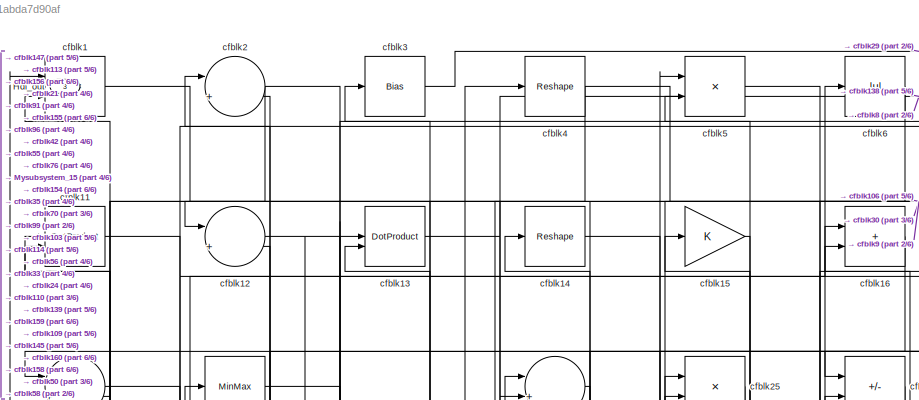
[diagram: root canvas - part 1/6, top left region]
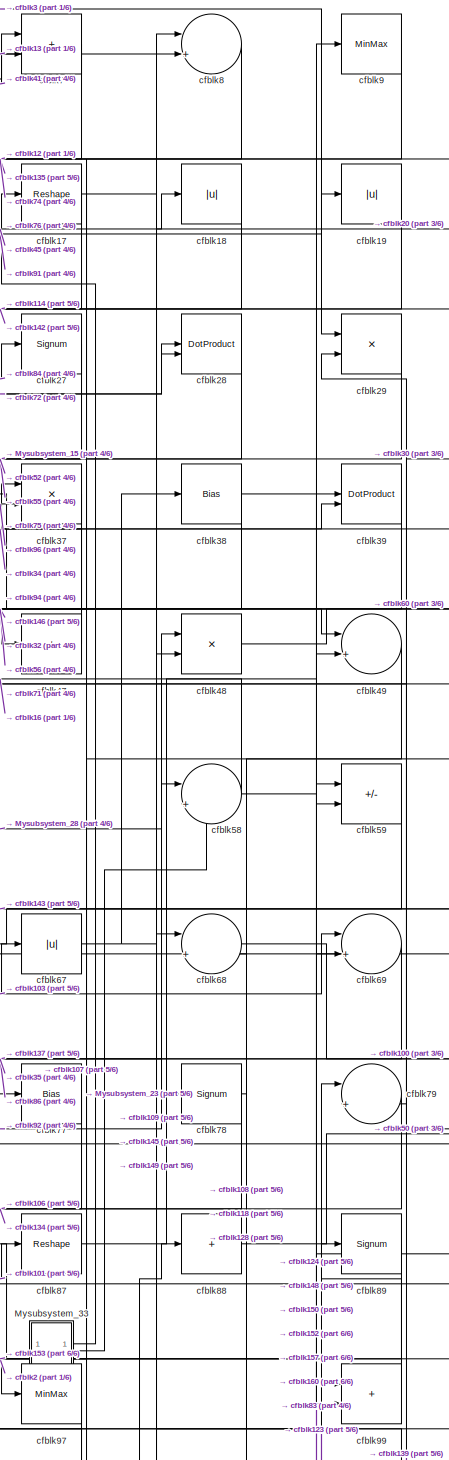
[diagram: root canvas - part 2/6, top right region]
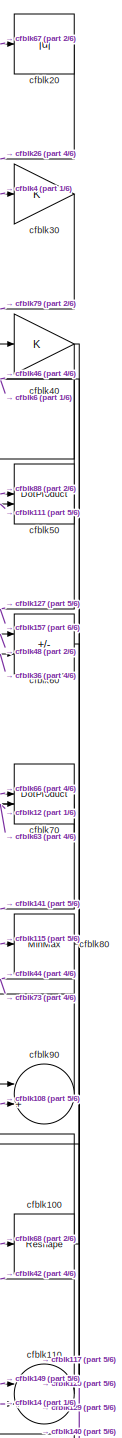
[diagram: root canvas - part 3/6, middle right region]
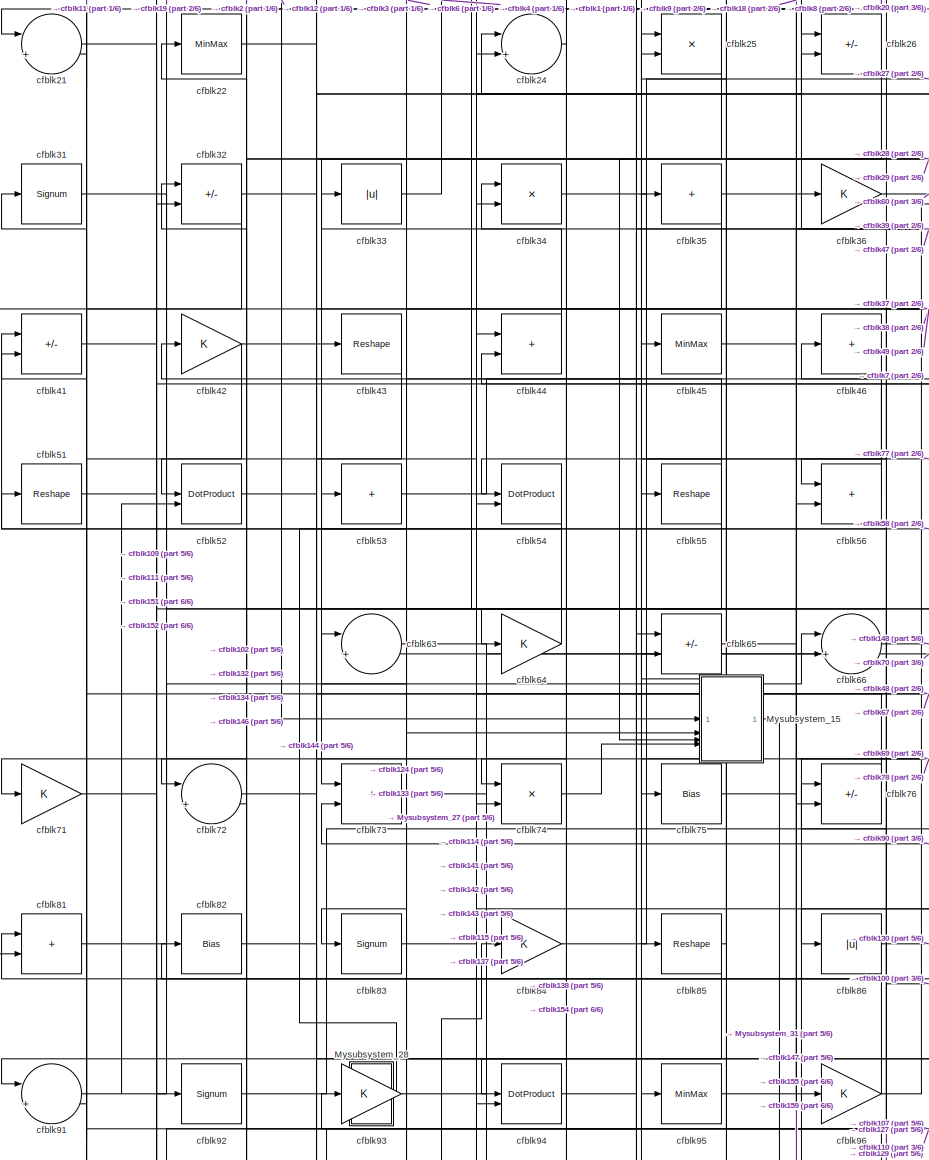
[diagram: root canvas - part 4/6, middle left region]
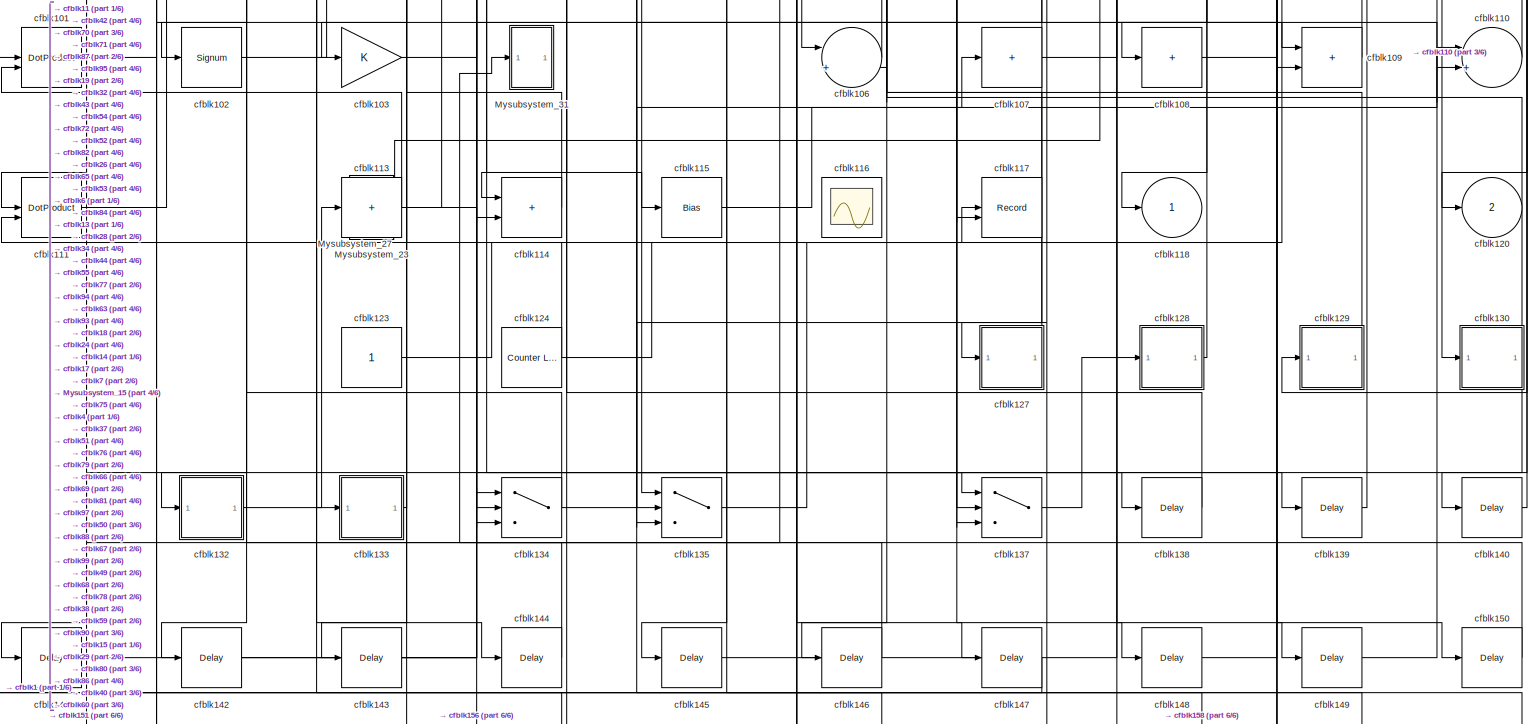
[diagram: root canvas - part 5/6, full width, bottom band]
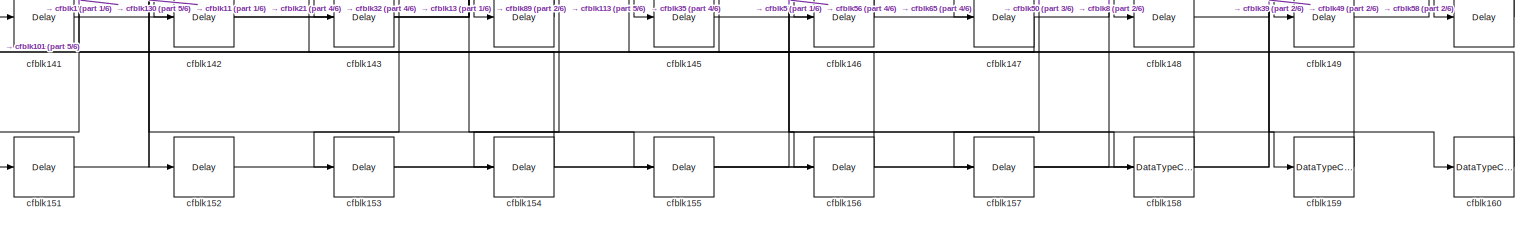
[diagram: root canvas - part 6/6, full width, bottom band]
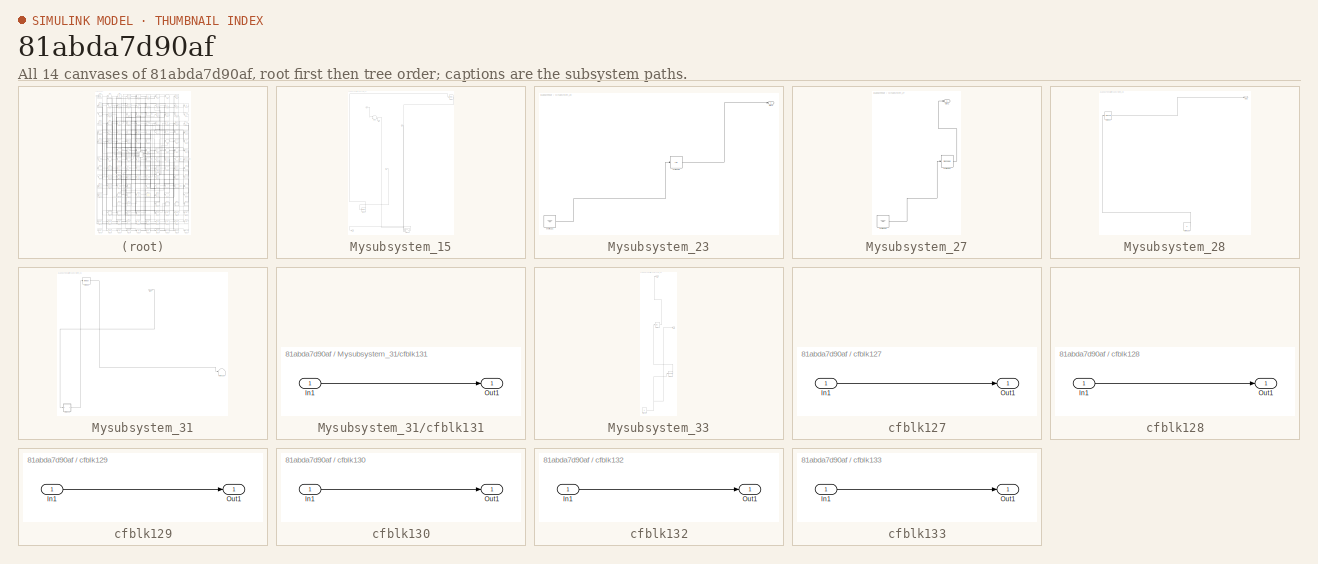
[diagram: thumbnail index - all 14 canvases of the model, root first then tree order]
MODEL slx_81abda7d90af
KIND model
CONFIG AbsTol = auto
CONFIG EnableMultiTasking = off
CONFIG FixedStep = auto
CONFIG MaxStep = auto
CONFIG MinStep = auto
CONFIG RelTol = 1e-3
CONFIG SampleTimeConstraint = Unconstrained
CONFIG SolverName = VariableStepAuto
CONFIG StartTime = 0.0
CONFIG StopTime = 10.0
BLOCK [Outport] Hdl_out
  OutDataTypeStr = uint8
  Port = 3
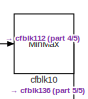
[diagram: Mysubsystem_15 - part 1/5, top right region]
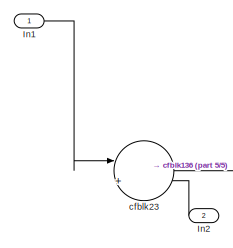
[diagram: Mysubsystem_15 - part 2/5, top left region]
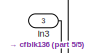
[diagram: Mysubsystem_15 - part 3/5, top center region]
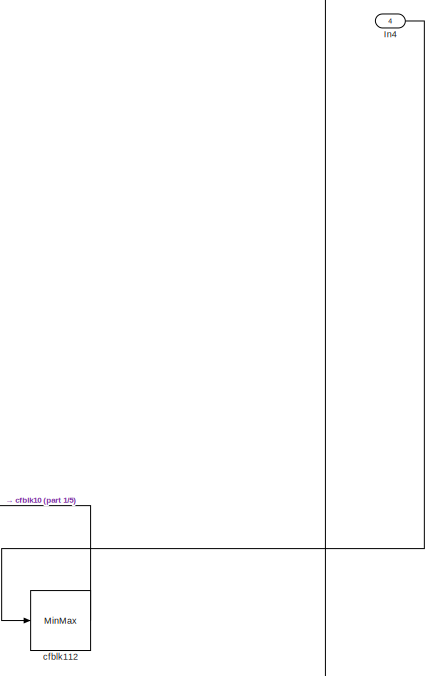
[diagram: Mysubsystem_15 - part 4/5, bottom left region]
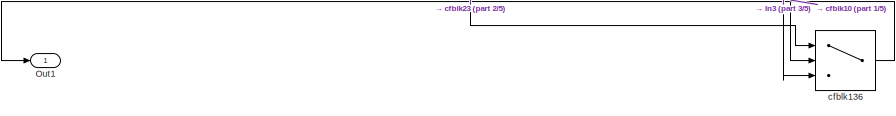
[diagram: Mysubsystem_15 - part 5/5, bottom left region]
BLOCK [SubSystem] Mysubsystem_15
  RTWFcnName = Mysubsystem_15
  RTWFcnNameOpts = User specified
  RTWFileNameOpts = Use function name
  RTWSystemCode = Reusable function
  TreatAsAtomicUnit = on
BLOCK [Inport] Mysubsystem_15/In1
BLOCK [Inport] Mysubsystem_15/In2
  Port = 2
BLOCK [Inport] Mysubsystem_15/In3
  Port = 3
BLOCK [Inport] Mysubsystem_15/In4
  Port = 4
BLOCK [Outport] Mysubsystem_15/Out1
BLOCK [MinMax] Mysubsystem_15/cfblk10
BLOCK [MinMax] Mysubsystem_15/cfblk112
BLOCK [Switch] Mysubsystem_15/cfblk136
  InputSameDT = off
  SaturateOnIntegerOverflow = off
BLOCK [Sum] Mysubsystem_15/cfblk23
  Inputs = |++
BLOCK [SubSystem] Mysubsystem_23
  RTWFcnName = Mysubsystem_23
  RTWFcnNameOpts = User specified
  RTWFileNameOpts = Use function name
  RTWSystemCode = Reusable function
  TreatAsAtomicUnit = on
BLOCK [Outport] Mysubsystem_23/Out1
BLOCK [Abs] Mysubsystem_23/cfblk105
  SaturateOnIntegerOverflow = off
BLOCK [Ground] Mysubsystem_23/cfblk121
BLOCK [SubSystem] Mysubsystem_27
  RTWFcnName = Mysubsystem_27
  RTWFcnNameOpts = User specified
  RTWFileNameOpts = Use function name
  RTWSystemCode = Reusable function
  TreatAsAtomicUnit = on
BLOCK [Outport] Mysubsystem_27/Out1
BLOCK [Reshape] Mysubsystem_27/cfblk104
BLOCK [Ground] Mysubsystem_27/cfblk122
BLOCK [SubSystem] Mysubsystem_28
  RTWFcnName = Mysubsystem_28
  RTWFcnNameOpts = User specified
  RTWFileNameOpts = Use function name
  RTWSystemCode = Reusable function
  TreatAsAtomicUnit = on
BLOCK [Outport] Mysubsystem_28/Out1
BLOCK [Constant] Mysubsystem_28/cfblk125
  SampleTime = -1
BLOCK [Signum] Mysubsystem_28/cfblk61
BLOCK [SubSystem] Mysubsystem_31
  RTWFcnName = Mysubsystem_31
  RTWFcnNameOpts = User specified
  RTWFileNameOpts = Use function name
  RTWSystemCode = Reusable function
  TreatAsAtomicUnit = on
BLOCK [Inport] Mysubsystem_31/In1
BLOCK [Terminator] Mysubsystem_31/cfblk119
BLOCK [SubSystem] Mysubsystem_31/cfblk131
  LibrarySourceBlock = hdlsllib/Ports &\nSubsystems/Subsystem
BLOCK [Inport] Mysubsystem_31/cfblk131/In1
BLOCK [Outport] Mysubsystem_31/cfblk131/Out1
BLOCK [MinMax] Mysubsystem_31/cfblk62
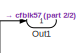
[diagram: Mysubsystem_33 - part 1/2, top center region]
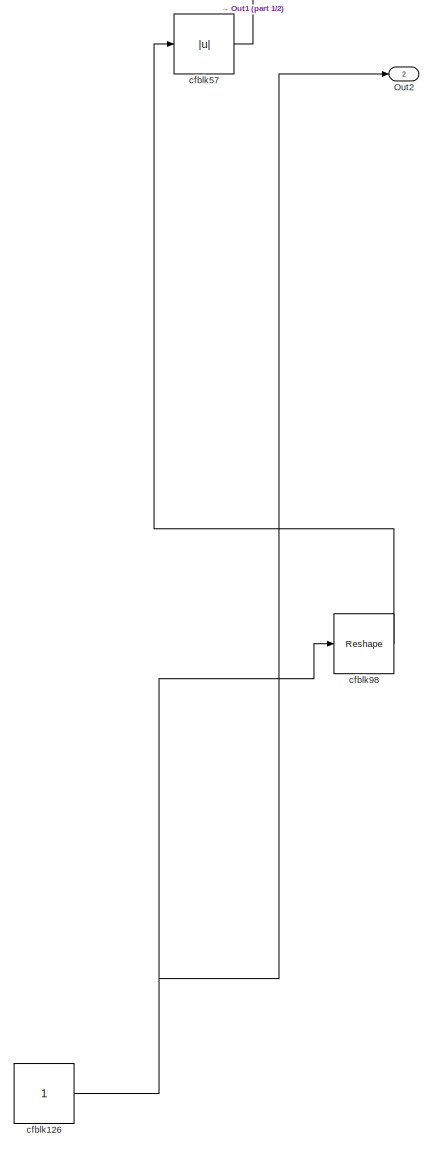
[diagram: Mysubsystem_33 - part 2/2, full width, bottom band]
BLOCK [SubSystem] Mysubsystem_33
  RTWFcnName = Mysubsystem_33
  RTWFcnNameOpts = User specified
  RTWFileNameOpts = Use function name
  RTWSystemCode = Reusable function
  TreatAsAtomicUnit = on
BLOCK [Outport] Mysubsystem_33/Out1
BLOCK [Outport] Mysubsystem_33/Out2
  Port = 2
BLOCK [Constant] Mysubsystem_33/cfblk126
  SampleTime = -1
BLOCK [Abs] Mysubsystem_33/cfblk57
  SaturateOnIntegerOverflow = off
BLOCK [Reshape] Mysubsystem_33/cfblk98
BLOCK [RelationalOperator] cfblk1
  InputSameDT = off
  Operator = <=
  OutDataTypeStr = boolean
BLOCK [Reshape] cfblk100
BLOCK [DotProduct] cfblk101
  OutDataTypeStr = uint8
BLOCK [Signum] cfblk102
BLOCK [Gain] cfblk103
  OutDataTypeStr = uint8
BLOCK [Sum] cfblk106
  Inputs = |++
  OutDataTypeStr = uint8
BLOCK [Sum] cfblk107
  IconShape = rectangular
  Inputs = +
  OutDataTypeStr = uint8
BLOCK [Sum] cfblk108
  IconShape = rectangular
  Inputs = +
  OutDataTypeStr = uint8
BLOCK [Sum] cfblk109
  IconShape = rectangular
  OutDataTypeStr = uint8
BLOCK [DotProduct] cfblk11
  OutDataTypeStr = uint8
BLOCK [Sum] cfblk110
  Inputs = |++
  OutDataTypeStr = uint8
BLOCK [DotProduct] cfblk111
  OutDataTypeStr = uint8
BLOCK [Sum] cfblk113
  IconShape = rectangular
  Inputs = +
  OutDataTypeStr = uint8
BLOCK [Sum] cfblk114
  IconShape = rectangular
  OutDataTypeStr = uint8
BLOCK [Bias] cfblk115
  Bias = 0.0
  SaturateOnIntegerOverflow = off
BLOCK [Scope] cfblk116
  Floating = on
  NumInputPorts = 1
  ScopeSpecificationString = Simulink.scopes.TimeScopeBlockCfg('CurrentConfiguration', extmgr.ConfigurationSet(extmgr.Configuration('Core','General UI',true,'FigureColor',[0.156862745098039 0.156862745098039 0.156862745098039]),extmgr.Configuration('Core','Source UI',true),extmgr.Configuration('Sources','WiredSimulink',true,'DataLoggingVariableName','ScopeData1','DataLoggingSaveFormat','StructureWithTime','DataLoggingLimitDat...<+2713ch>
BLOCK [Record] cfblk117
  CompatibilityTag = XY
  FileSettingsInternal = {"entries":[{"content":{"excelSettings":{"content":{},"type":"Streamout.ExcelSettings"}},"type":"Streamout.FileSettingStorage","uuid":""}],"packageUris":["http:\/\/schema.mathworks.com\/mf0\/streamout_blocks\/R2020a"],"version":"1.0"}
  Layout = [1 1]
  SignalsInternal = {"entries":[{"content":{"signals":[{"content":{"blockPath":[],"dimensions":[1],"domain":"","lineColor":"#a2142f","plots":[1],"port":1,"signalID":53694,"signalName":"cfblk135"},"type":"RecordBlkView.Signal","uuid":""},{"content":{"blockPath":[],"dimensions":[1],"domain":"","lineColor":"#139fff","plots":[1],"port":2,"signalID":53697,"signalName":"cfblk40"},"type":"RecordBlkView.Signal","uuid":""}]},...<+143ch>
  VisualizationBindings = {"xyplotplugin":{"info":[{"series":[{"bindingParametersList":[{"parameter":"X-Axis","signalID":53694,"signalName":"cfblk135"},{"parameter":"Y-Axis","signalID":53697,"signalName":"cfblk40"}],"seriesID":28568}],"subplotID":1}]}}
  st = -1
BLOCK [Outport] cfblk118
  OutDataTypeStr = uint8
  VectorParamsAs1DForOutWhenUnconnected = off
BLOCK [Sum] cfblk12
  Inputs = |++
  OutDataTypeStr = uint8
BLOCK [Outport] cfblk120
  OutDataTypeStr = uint8
  Port = 2
  VectorParamsAs1DForOutWhenUnconnected = off
BLOCK [Constant] cfblk123
  OutDataTypeStr = uint8
  SampleTime = -1
BLOCK [Reference] cfblk124  REF=hdlsllib/Sources/Counter
Limited
  SourceBlock = hdlsllib/Sources/Counter\nLimited
  SourceType = Counter Limited
BLOCK [SubSystem] cfblk127
  LibrarySourceBlock = hdlsllib/Ports &\nSubsystems/Subsystem
BLOCK [Inport] cfblk127/In1
BLOCK [Outport] cfblk127/Out1
BLOCK [SubSystem] cfblk128
  LibrarySourceBlock = hdlsllib/Ports &\nSubsystems/Subsystem
BLOCK [Inport] cfblk128/In1
BLOCK [Outport] cfblk128/Out1
BLOCK [SubSystem] cfblk129
  LibrarySourceBlock = hdlsllib/Ports &\nSubsystems/Subsystem
BLOCK [Inport] cfblk129/In1
BLOCK [Outport] cfblk129/Out1
BLOCK [DotProduct] cfblk13
  OutDataTypeStr = uint8
BLOCK [SubSystem] cfblk130
  LibrarySourceBlock = hdlsllib/Ports &\nSubsystems/Subsystem
BLOCK [Inport] cfblk130/In1
BLOCK [Outport] cfblk130/Out1
BLOCK [SubSystem] cfblk132
  LibrarySourceBlock = hdlsllib/Ports &\nSubsystems/Subsystem
BLOCK [Inport] cfblk132/In1
BLOCK [Outport] cfblk132/Out1
BLOCK [SubSystem] cfblk133
  LibrarySourceBlock = hdlsllib/Ports &\nSubsystems/Subsystem
BLOCK [Inport] cfblk133/In1
BLOCK [Outport] cfblk133/Out1
BLOCK [Switch] cfblk134
  InputSameDT = off
  OutDataTypeStr = uint8
  SaturateOnIntegerOverflow = off
BLOCK [Switch] cfblk135
  InputSameDT = off
  OutDataTypeStr = uint8
  SaturateOnIntegerOverflow = off
BLOCK [Switch] cfblk137
  InputSameDT = off
  OutDataTypeStr = uint8
  SaturateOnIntegerOverflow = off
BLOCK [Delay] cfblk138
  InputPortMap = u0
  SampleTime = 1
BLOCK [Delay] cfblk139
  InputPortMap = u0
  SampleTime = 1
BLOCK [Reshape] cfblk14
BLOCK [Delay] cfblk140
  InputPortMap = u0
  SampleTime = 1
BLOCK [Delay] cfblk141
  InputPortMap = u0
  SampleTime = 1
BLOCK [Delay] cfblk142
  InputPortMap = u0
  SampleTime = 1
BLOCK [Delay] cfblk143
  InputPortMap = u0
  SampleTime = 1
BLOCK [Delay] cfblk144
  InputPortMap = u0
  SampleTime = 1
BLOCK [Delay] cfblk145
  InputPortMap = u0
  SampleTime = 1
BLOCK [Delay] cfblk146
  InputPortMap = u0
  SampleTime = 1
BLOCK [Delay] cfblk147
  InputPortMap = u0
  SampleTime = 1
BLOCK [Delay] cfblk148
  InputPortMap = u0
  SampleTime = 1
BLOCK [Delay] cfblk149
  InputPortMap = u0
  SampleTime = 1
BLOCK [Gain] cfblk15
  OutDataTypeStr = uint8
BLOCK [Delay] cfblk150
  InputPortMap = u0
  SampleTime = 1
BLOCK [Delay] cfblk151
  InputPortMap = u0
  SampleTime = 1
BLOCK [Delay] cfblk152
  InputPortMap = u0
  SampleTime = 1
BLOCK [Delay] cfblk153
  InputPortMap = u0
  SampleTime = 1
BLOCK [Delay] cfblk154
  InputPortMap = u0
  SampleTime = 1
BLOCK [Delay] cfblk155
  InputPortMap = u0
  SampleTime = 1
BLOCK [Delay] cfblk156
  InputPortMap = u0
  SampleTime = 1
BLOCK [Delay] cfblk157
  InputPortMap = u0
  SampleTime = 1
BLOCK [DataTypeConversion] cfblk158
  OutDataTypeStr = uint8
  RndMeth = Floor
  SaturateOnIntegerOverflow = off
BLOCK [DataTypeConversion] cfblk159
  OutDataTypeStr = uint8
  RndMeth = Floor
  SaturateOnIntegerOverflow = off
BLOCK [Sum] cfblk16
  IconShape = rectangular
  OutDataTypeStr = uint8
BLOCK [DataTypeConversion] cfblk160
  OutDataTypeStr = uint8
  RndMeth = Floor
  SaturateOnIntegerOverflow = off
BLOCK [Reshape] cfblk17
BLOCK [Abs] cfblk18
  OutDataTypeStr = uint8
  SaturateOnIntegerOverflow = off
BLOCK [Abs] cfblk19
  OutDataTypeStr = uint8
  SaturateOnIntegerOverflow = off
BLOCK [Sum] cfblk2
  Inputs = |++
  OutDataTypeStr = uint8
BLOCK [Abs] cfblk20
  OutDataTypeStr = uint8
  SaturateOnIntegerOverflow = off
BLOCK [Sum] cfblk21
  Inputs = |++
  OutDataTypeStr = uint8
BLOCK [MinMax] cfblk22
  OutDataTypeStr = uint8
BLOCK [Sum] cfblk24
  Inputs = |++
  OutDataTypeStr = uint8
BLOCK [Product] cfblk25
  Inputs = */
  OutDataTypeStr = uint8
  RndMeth = Zero
  SaturateOnIntegerOverflow = on
BLOCK [Sum] cfblk26
  IconShape = rectangular
  Inputs = +-
  OutDataTypeStr = uint8
BLOCK [Signum] cfblk27
BLOCK [DotProduct] cfblk28
  OutDataTypeStr = uint8
BLOCK [Product] cfblk29
  Inputs = */
  OutDataTypeStr = uint8
  RndMeth = Zero
  SaturateOnIntegerOverflow = on
BLOCK [Bias] cfblk3
  Bias = 0.0
  SaturateOnIntegerOverflow = off
BLOCK [Gain] cfblk30
  OutDataTypeStr = uint8
BLOCK [Signum] cfblk31
BLOCK [Sum] cfblk32
  IconShape = rectangular
  Inputs = +-
  OutDataTypeStr = uint8
BLOCK [Abs] cfblk33
  OutDataTypeStr = uint8
  SaturateOnIntegerOverflow = off
BLOCK [Product] cfblk34
  Inputs = */
  OutDataTypeStr = uint8
  RndMeth = Zero
  SaturateOnIntegerOverflow = on
BLOCK [Sum] cfblk35
  IconShape = rectangular
  Inputs = +
  OutDataTypeStr = uint8
BLOCK [Gain] cfblk36
  OutDataTypeStr = uint8
BLOCK [Product] cfblk37
  Inputs = */
  OutDataTypeStr = uint8
  RndMeth = Zero
  SaturateOnIntegerOverflow = on
BLOCK [Bias] cfblk38
  Bias = 0.0
  SaturateOnIntegerOverflow = off
BLOCK [DotProduct] cfblk39
  OutDataTypeStr = uint8
BLOCK [Reshape] cfblk4
BLOCK [Gain] cfblk40
  OutDataTypeStr = uint8
BLOCK [Sum] cfblk41
  IconShape = rectangular
  Inputs = +-
  OutDataTypeStr = uint8
BLOCK [Gain] cfblk42
  OutDataTypeStr = uint8
BLOCK [Reshape] cfblk43
BLOCK [Sum] cfblk44
  IconShape = rectangular
  OutDataTypeStr = uint8
BLOCK [MinMax] cfblk45
  OutDataTypeStr = uint8
BLOCK [Sum] cfblk46
  IconShape = rectangular
  Inputs = +
  OutDataTypeStr = uint8
BLOCK [Sum] cfblk47
  IconShape = rectangular
  Inputs = +
  OutDataTypeStr = uint8
BLOCK [Product] cfblk48
  Inputs = */
  OutDataTypeStr = uint8
  RndMeth = Zero
  SaturateOnIntegerOverflow = on
BLOCK [Sum] cfblk49
  Inputs = |++
  OutDataTypeStr = uint8
BLOCK [Product] cfblk5
  Inputs = */
  OutDataTypeStr = uint8
  RndMeth = Zero
  SaturateOnIntegerOverflow = on
BLOCK [DotProduct] cfblk50
  OutDataTypeStr = uint8
BLOCK [Reshape] cfblk51
BLOCK [DotProduct] cfblk52
  OutDataTypeStr = uint8
BLOCK [Sum] cfblk53
  IconShape = rectangular
  Inputs = +
  OutDataTypeStr = uint8
BLOCK [DotProduct] cfblk54
  OutDataTypeStr = uint8
BLOCK [Reshape] cfblk55
BLOCK [Sum] cfblk56
  IconShape = rectangular
  OutDataTypeStr = uint8
BLOCK [Sum] cfblk58
  Inputs = |++
  OutDataTypeStr = uint8
BLOCK [Sum] cfblk59
  IconShape = rectangular
  Inputs = +-
  OutDataTypeStr = uint8
BLOCK [Abs] cfblk6
  OutDataTypeStr = uint8
  SaturateOnIntegerOverflow = off
BLOCK [Sum] cfblk60
  IconShape = rectangular
  Inputs = +-
  OutDataTypeStr = uint8
BLOCK [Sum] cfblk63
  Inputs = |++
  OutDataTypeStr = uint8
BLOCK [Gain] cfblk64
  OutDataTypeStr = uint8
BLOCK [Sum] cfblk65
  IconShape = rectangular
  Inputs = +-
  OutDataTypeStr = uint8
BLOCK [Sum] cfblk66
  Inputs = |++
  OutDataTypeStr = uint8
BLOCK [Abs] cfblk67
  OutDataTypeStr = uint8
  SaturateOnIntegerOverflow = off
BLOCK [Sum] cfblk68
  Inputs = |++
  OutDataTypeStr = uint8
BLOCK [Sum] cfblk69
  Inputs = |++
  OutDataTypeStr = uint8
BLOCK [Sum] cfblk7
  IconShape = rectangular
  OutDataTypeStr = uint8
BLOCK [DotProduct] cfblk70
  OutDataTypeStr = uint8
BLOCK [Gain] cfblk71
  OutDataTypeStr = uint8
BLOCK [Sum] cfblk72
  Inputs = |++
  OutDataTypeStr = uint8
BLOCK [Sum] cfblk73
  IconShape = rectangular
  OutDataTypeStr = uint8
BLOCK [Product] cfblk74
  Inputs = */
  OutDataTypeStr = uint8
  RndMeth = Zero
  SaturateOnIntegerOverflow = on
BLOCK [Bias] cfblk75
  Bias = 0.0
  SaturateOnIntegerOverflow = off
BLOCK [Sum] cfblk76
  IconShape = rectangular
  Inputs = +-
  OutDataTypeStr = uint8
BLOCK [Bias] cfblk77
  Bias = 0.0
  SaturateOnIntegerOverflow = off
BLOCK [Signum] cfblk78
BLOCK [Sum] cfblk79
  Inputs = |++
  OutDataTypeStr = uint8
BLOCK [Sum] cfblk8
  Inputs = |++
  OutDataTypeStr = uint8
BLOCK [MinMax] cfblk80
  OutDataTypeStr = uint8
BLOCK [Sum] cfblk81
  IconShape = rectangular
  OutDataTypeStr = uint8
BLOCK [Bias] cfblk82
  Bias = 0.0
  SaturateOnIntegerOverflow = off
BLOCK [Signum] cfblk83
BLOCK [Gain] cfblk84
  OutDataTypeStr = uint8
BLOCK [Reshape] cfblk85
BLOCK [Abs] cfblk86
  OutDataTypeStr = uint8
  SaturateOnIntegerOverflow = off
BLOCK [Reshape] cfblk87
BLOCK [Sum] cfblk88
  IconShape = rectangular
  Inputs = +
  OutDataTypeStr = uint8
BLOCK [Signum] cfblk89
BLOCK [MinMax] cfblk9
  OutDataTypeStr = uint8
BLOCK [Sum] cfblk90
  Inputs = |++
  OutDataTypeStr = uint8
BLOCK [Sum] cfblk91
  Inputs = |++
  OutDataTypeStr = uint8
BLOCK [Signum] cfblk92
BLOCK [Gain] cfblk93
  OutDataTypeStr = uint8
BLOCK [DotProduct] cfblk94
  OutDataTypeStr = uint8
BLOCK [MinMax] cfblk95
  OutDataTypeStr = uint8
BLOCK [Gain] cfblk96
  OutDataTypeStr = uint8
BLOCK [MinMax] cfblk97
  OutDataTypeStr = uint8
BLOCK [Sum] cfblk99
  IconShape = rectangular
  OutDataTypeStr = uint8
LINE Mysubsystem_15/In1:1 -> Mysubsystem_15/cfblk23:1
LINE Mysubsystem_15/In2:1 -> Mysubsystem_15/cfblk23:2
LINE Mysubsystem_15/In3:1 -> Mysubsystem_15/cfblk136:3
LINE Mysubsystem_15/In4:1 -> Mysubsystem_15/cfblk112:1
LINE Mysubsystem_15/cfblk10:1 -> Mysubsystem_15/cfblk136:2
LINE Mysubsystem_15/cfblk112:1 -> Mysubsystem_15/cfblk10:1
LINE Mysubsystem_15/cfblk136:1 -> Mysubsystem_15/Out1:1
LINE Mysubsystem_15/cfblk23:1 -> Mysubsystem_15/cfblk136:1
LINE Mysubsystem_15:1 -> Mysubsystem_31:1
LINE Mysubsystem_23/cfblk105:1 -> Mysubsystem_23/Out1:1
LINE Mysubsystem_23/cfblk121:1 -> Mysubsystem_23/cfblk105:1
LINE Mysubsystem_23:1 -> cfblk88:1
LINE Mysubsystem_27/cfblk104:1 -> Mysubsystem_27/Out1:1
LINE Mysubsystem_27/cfblk122:1 -> Mysubsystem_27/cfblk104:1
LINE Mysubsystem_27:1 -> cfblk84:1
LINE Mysubsystem_28/cfblk125:1 -> Mysubsystem_28/cfblk61:1
LINE Mysubsystem_28/cfblk61:1 -> Mysubsystem_28/Out1:1
LINE Mysubsystem_28:1 -> cfblk58:1
LINE Mysubsystem_31/In1:1 -> Mysubsystem_31/cfblk131:1
LINE Mysubsystem_31/cfblk131/In1:1 -> Mysubsystem_31/cfblk131/Out1:1
LINE Mysubsystem_31/cfblk131:1 -> Mysubsystem_31/cfblk62:1
LINE Mysubsystem_31/cfblk62:1 -> Mysubsystem_31/cfblk119:1
NET Mysubsystem_33/cfblk126:1 -> Mysubsystem_33/Out2:1, Mysubsystem_33/cfblk98:1
LINE Mysubsystem_33/cfblk57:1 -> Mysubsystem_33/Out1:1
LINE Mysubsystem_33/cfblk98:1 -> Mysubsystem_33/cfblk57:1
LINE Mysubsystem_33:1 -> cfblk17:1
LINE Mysubsystem_33:2 -> cfblk58:2
NET cfblk100:1 -> cfblk40:1, cfblk46:1
LINE cfblk101:1 -> cfblk87:1
NET cfblk102:1 -> cfblk26:2, cfblk65:1
NET cfblk103:1 -> cfblk28:2, cfblk69:1
LINE cfblk106:1 -> cfblk14:1
NET cfblk107:1 -> cfblk135:2, cfblk81:1, cfblk99:1
LINE cfblk108:1 -> cfblk90:2
LINE cfblk109:1 -> cfblk15:1
LINE cfblk110:1 -> cfblk42:1
NET cfblk111:1 -> cfblk50:2, cfblk95:1
NET cfblk113:1 -> cfblk11:2, cfblk156:1
LINE cfblk114:1 -> cfblk13:2
LINE cfblk115:1 -> cfblk80:1
NET cfblk11:1 -> cfblk155:1, cfblk16:2
LINE cfblk123:1 -> cfblk79:1
NET cfblk124:1 -> cfblk101:2, cfblk53:1, cfblk59:1
LINE cfblk127/In1:1 -> cfblk127/Out1:1
NET cfblk127:1 -> cfblk76:1, cfblk82:1
LINE cfblk128/In1:1 -> cfblk128/Out1:1
LINE cfblk128:1 -> cfblk68:2
LINE cfblk129/In1:1 -> cfblk129/Out1:1
LINE cfblk129:1 -> cfblk51:1
NET cfblk12:1 -> Mysubsystem_15:1, cfblk70:2
LINE cfblk130/In1:1 -> cfblk130/Out1:1
NET cfblk130:1 -> cfblk151:1, cfblk93:1
LINE cfblk132/In1:1 -> cfblk132/Out1:1
LINE cfblk132:1 -> cfblk113:1
LINE cfblk133/In1:1 -> cfblk133/Out1:1
LINE cfblk133:1 -> cfblk63:1
NET cfblk134:1 -> cfblk107:1, cfblk32:1
LINE cfblk135:1 -> cfblk117:1
LINE cfblk137:1 -> cfblk128:1
LINE cfblk138:1 -> cfblk24:1
LINE cfblk139:1 -> cfblk29:2
NET cfblk13:1 -> cfblk138:1, cfblk8:2
LINE cfblk140:1 -> cfblk90:1
LINE cfblk141:1 -> cfblk94:2
LINE cfblk142:1 -> cfblk34:2
LINE cfblk143:1 -> cfblk44:1
LINE cfblk144:1 -> cfblk134:1
LINE cfblk145:1 -> cfblk68:1
LINE cfblk146:1 -> cfblk72:2
LINE cfblk147:1 -> cfblk1:1
LINE cfblk148:1 -> cfblk69:2
LINE cfblk149:1 -> cfblk110:1
NET cfblk14:1 -> cfblk110:2, cfblk139:1
LINE cfblk150:1 -> cfblk111:2
LINE cfblk151:1 -> cfblk32:2
LINE cfblk152:1 -> cfblk39:1
LINE cfblk153:1 -> cfblk8:1
LINE cfblk154:1 -> cfblk13:1
LINE cfblk155:1 -> cfblk56:2
LINE cfblk156:1 -> cfblk1:2
LINE cfblk157:1 -> cfblk49:2
LINE cfblk158:1 -> cfblk101:1
LINE cfblk159:1 -> cfblk5:1
LINE cfblk15:1 -> cfblk145:1
LINE cfblk160:1 -> cfblk5:2
LINE cfblk16:1 -> cfblk91:1
NET cfblk17:1 -> cfblk135:3, cfblk48:2, cfblk97:1
LINE cfblk18:1 -> cfblk114:1
NET cfblk19:1 -> cfblk142:1, cfblk59:2
LINE cfblk1:1 -> cfblk24:2
LINE cfblk20:1 -> cfblk26:1
LINE cfblk21:1 -> cfblk152:1
LINE cfblk22:1 -> cfblk43:1
LINE cfblk24:1 -> cfblk94:1
LINE cfblk25:1 -> cfblk73:1
LINE cfblk26:1 -> cfblk72:1
LINE cfblk27:1 -> cfblk52:1
LINE cfblk28:1 -> cfblk75:1
NET cfblk29:1 -> Mysubsystem_15:3, cfblk55:1
NET cfblk2:1 -> cfblk21:1, cfblk35:1, cfblk99:2
LINE cfblk30:1 -> cfblk79:2
NET cfblk31:1 -> cfblk64:1, cfblk96:1
NET cfblk32:1 -> cfblk49:1, cfblk54:2, cfblk7:1, cfblk81:2
LINE cfblk33:1 -> cfblk4:1
LINE cfblk34:1 -> cfblk77:1
NET cfblk35:1 -> cfblk154:1, cfblk78:1
LINE cfblk36:1 -> cfblk60:2
NET cfblk37:1 -> cfblk146:1, cfblk71:1
NET cfblk38:1 -> cfblk150:1, cfblk83:1
LINE cfblk39:1 -> cfblk56:1
LINE cfblk3:1 -> cfblk29:1
NET cfblk40:1 -> cfblk117:2, cfblk129:1
LINE cfblk41:1 -> cfblk7:2
NET cfblk42:1 -> cfblk111:1, cfblk12:2, cfblk74:2
LINE cfblk43:1 -> cfblk132:1
LINE cfblk44:1 -> cfblk33:1
LINE cfblk45:1 -> cfblk18:1
LINE cfblk46:1 -> cfblk85:1
LINE cfblk47:1 -> cfblk34:1
LINE cfblk48:1 -> cfblk60:1
LINE cfblk49:1 -> cfblk108:1
NET cfblk4:1 -> cfblk106:1, cfblk30:1
NET cfblk50:1 -> cfblk127:1, cfblk157:1, cfblk6:1
LINE cfblk51:1 -> cfblk92:1
LINE cfblk52:1 -> cfblk144:1
LINE cfblk53:1 -> cfblk45:1
LINE cfblk54:1 -> cfblk102:1
NET cfblk55:1 -> cfblk114:2, cfblk2:2, cfblk54:1
LINE cfblk56:1 -> cfblk3:1
NET cfblk58:1 -> cfblk160:1, cfblk16:1
LINE cfblk59:1 -> cfblk143:1
LINE cfblk5:1 -> cfblk158:1
LINE cfblk60:1 -> cfblk120:1
LINE cfblk63:1 -> cfblk115:1
LINE cfblk64:1 -> cfblk41:1
LINE cfblk65:1 -> cfblk159:1
NET cfblk66:1 -> cfblk148:1, cfblk70:1
NET cfblk67:1 -> cfblk109:1, cfblk149:1, cfblk20:1, cfblk38:1
LINE cfblk68:1 -> cfblk100:1
NET cfblk69:1 -> cfblk137:3, cfblk86:1
NET cfblk6:1 -> Mysubsystem_15:2, cfblk103:1, cfblk21:2
NET cfblk70:1 -> cfblk141:1, cfblk63:2
LINE cfblk71:1 -> cfblk109:2
LINE cfblk72:1 -> cfblk28:1
LINE cfblk73:1 -> cfblk66:2
LINE cfblk74:1 -> Mysubsystem_15:4
NET cfblk75:1 -> cfblk147:1, cfblk25:2, cfblk37:1
NET cfblk76:1 -> cfblk2:1, cfblk31:1
LINE cfblk77:1 -> cfblk134:2
NET cfblk78:1 -> cfblk118:1, cfblk137:2
LINE cfblk79:1 -> cfblk106:2
LINE cfblk7:1 -> cfblk135:1
LINE cfblk80:1 -> cfblk140:1
LINE cfblk81:1 -> cfblk66:1
LINE cfblk82:1 -> cfblk133:1
LINE cfblk83:1 -> cfblk25:1
LINE cfblk84:1 -> cfblk27:1
NET cfblk85:1 -> cfblk65:2, cfblk91:2
LINE cfblk86:1 -> cfblk130:1
LINE cfblk87:1 -> cfblk9:1
LINE cfblk88:1 -> cfblk50:1
LINE cfblk89:1 -> cfblk153:1
NET cfblk8:1 -> cfblk47:1, cfblk76:2
NET cfblk90:1 -> cfblk44:2, cfblk73:2
NET cfblk91:1 -> cfblk19:1, cfblk52:2
NET cfblk92:1 -> cfblk48:1, cfblk67:1
LINE cfblk93:1 -> cfblk137:1
LINE cfblk94:1 -> cfblk39:2
LINE cfblk95:1 -> cfblk36:1
NET cfblk96:1 -> cfblk11:1, cfblk22:1, cfblk37:2, cfblk41:2
LINE cfblk97:1 -> cfblk134:3
LINE cfblk99:1 -> cfblk89:1
NET cfblk9:1 -> cfblk12:1, cfblk74:1
note: NET lines group one-source signal fan-out (src -> all destinations, sorted); 1:1 wires keep LINE
